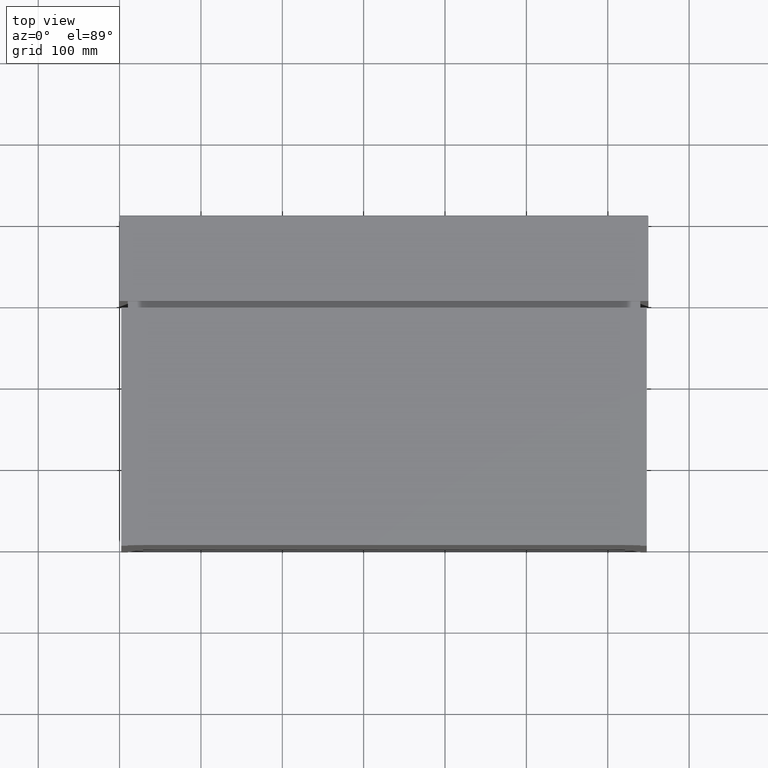
[diagram: clean part render]
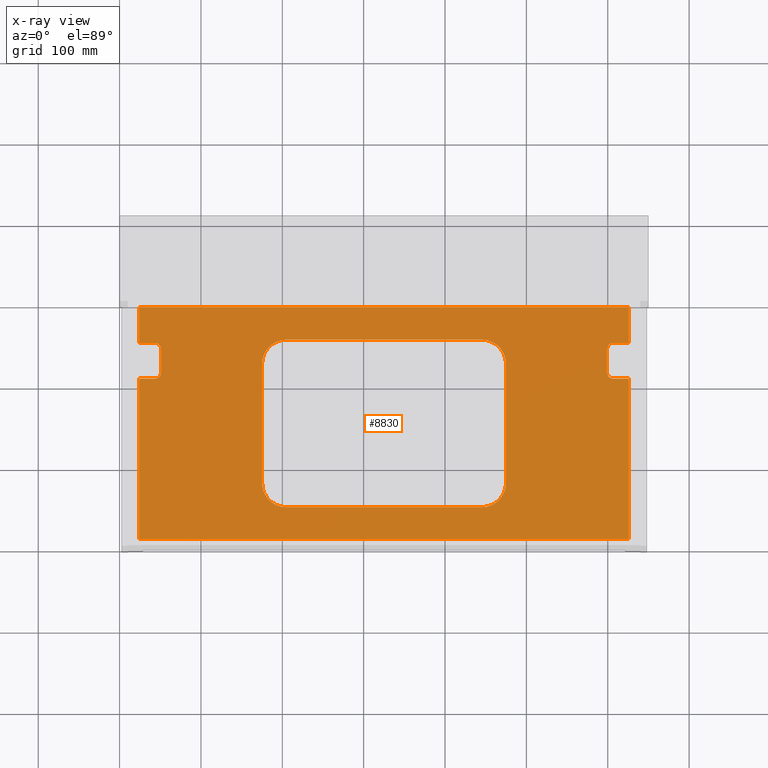
[diagram: x-ray — body ghosted, one internal face saturated and labeled with its STEP entity id]
A machine part, top view, then the same camera in x-ray: the body is ghosted and one INTERNAL B-rep face — a face not visible from any outside direction — is saturated and labeled: STEP entity #8830.
In plain terms, the highlighted planar face has unit normal (0, 0, -1).
Its self-contained STEP definition (entity closure, byte-faithful):
#72 = CARTESIAN_POINT ( 'NONE',  ( 174.9999999999999432, 83.99999999999998579, -440.4999999999998295 ) ) ;
#530 = VERTEX_POINT ( 'NONE', #6392 ) ;
#550 = CARTESIAN_POINT ( 'NONE',  ( 24.00000000000002132, 256.0000000000001705, -440.4999999999998295 ) ) ;
#551 = ORIENTED_EDGE ( 'NONE', *, *, #10274, .T. ) ;
#558 = LINE ( 'NONE', #5007, #9171 ) ;
#607 = LINE ( 'NONE', #5059, #10146 ) ;
#645 = VERTEX_POINT ( 'NONE', #6605 ) ;
#666 = EDGE_CURVE ( 'NONE', #530, #12636, #13265, .T. ) ;
#669 = DIRECTION ( 'NONE',  ( 1.000000000000000000, 0.0000000000000000000, 0.0000000000000000000 ) ) ;
#691 = EDGE_CURVE ( 'NONE', #12238, #8826, #13338, .T. ) ;
#734 = DIRECTION ( 'NONE',  ( 3.965082230804127459E-15, -1.000000000000000000, 0.0000000000000000000 ) ) ;
#783 = AXIS2_PLACEMENT_3D ( 'NONE', #8715, #13130, #3207 ) ;
#875 = FACE_OUTER_BOUND ( 'NONE', #13262, .T. ) ;
#947 = LINE ( 'NONE', #5384, #4089 ) ;
#957 = ORIENTED_EDGE ( 'NONE', *, *, #9384, .F. ) ;
#1093 = CARTESIAN_POINT ( 'NONE',  ( 444.9999999999999432, 260.0000000000001705, -440.4999999999997726 ) ) ;
#1181 = ORIENTED_EDGE ( 'NONE', *, *, #9986, .F. ) ;
#1299 = AXIS2_PLACEMENT_3D ( 'NONE', #6201, #10625, #669 ) ;
#1310 = CARTESIAN_POINT ( 'NONE',  ( 444.9999999999999432, 53.99999999999999289, -440.4999999999997726 ) ) ;
#1320 = AXIS2_PLACEMENT_3D ( 'NONE', #2044, #6476, #10898 ) ;
#1550 = VECTOR ( 'NONE', #4999, 1000.000000000000000 ) ;
#1552 = AXIS2_PLACEMENT_3D ( 'NONE', #4856, #9280, #13691 ) ;
#1567 = CARTESIAN_POINT ( 'NONE',  ( 174.9999999999999147, 230.0000000000001705, -440.4999999999998295 ) ) ;
#1583 = EDGE_CURVE ( 'NONE', #3081, #10391, #6271, .T. ) ;
#1717 = ORIENTED_EDGE ( 'NONE', *, *, #666, .F. ) ;
#1822 = EDGE_CURVE ( 'NONE', #9160, #11877, #8557, .T. ) ;
#1949 = DIRECTION ( 'NONE',  ( -0.0000000000000000000, -0.0000000000000000000, 1.000000000000000000 ) ) ;
#2044 = CARTESIAN_POINT ( 'NONE',  ( 606.9999999999998863, 248.0000000000002274, -440.4999999999998295 ) ) ;
#2078 = DIRECTION ( 'NONE',  ( -0.0000000000000000000, -1.000000000000000000, -0.0000000000000000000 ) ) ;
#2092 = CARTESIAN_POINT ( 'NONE',  ( 204.9999999999999432, 83.99999999999998579, -440.4999999999998295 ) ) ;
#2208 = VERTEX_POINT ( 'NONE', #9273 ) ;
#2354 = EDGE_LOOP ( 'NONE', ( #9731, #9352, #1717, #4177, #4770, #12588, #2931, #1181 ) ) ;
#2403 = CIRCLE ( 'NONE', #8662, 30.00000000000000000 ) ;
#2516 = CARTESIAN_POINT ( 'NONE',  ( 599.0000000000000000, 220.0000000000001990, -440.4999999999998295 ) ) ;
#2550 = DIRECTION ( 'NONE',  ( -1.000000000000000000, 0.0000000000000000000, 0.0000000000000000000 ) ) ;
#2669 = LINE ( 'NONE', #7099, #11523 ) ;
#2671 = ORIENTED_EDGE ( 'NONE', *, *, #7807, .T. ) ;
#2681 = VECTOR ( 'NONE', #7281, 1000.000000000000000 ) ;
#2718 = EDGE_CURVE ( 'NONE', #4519, #5140, #12779, .T. ) ;
#2757 = EDGE_CURVE ( 'NONE', #2208, #9712, #5177, .T. ) ;
#2853 = CARTESIAN_POINT ( 'NONE',  ( 474.9999999999998863, 230.0000000000001705, -440.4999999999998295 ) ) ;
#2931 = ORIENTED_EDGE ( 'NONE', *, *, #5201, .F. ) ;
#2990 = EDGE_CURVE ( 'NONE', #4694, #4079, #2403, .T. ) ;
#3040 = DIRECTION ( 'NONE',  ( -0.0000000000000000000, -1.000000000000000000, -0.0000000000000000000 ) ) ;
#3081 = VERTEX_POINT ( 'NONE', #6470 ) ;
#3207 = DIRECTION ( 'NONE',  ( -1.000000000000000000, 0.0000000000000000000, 0.0000000000000000000 ) ) ;
#3238 = DIRECTION ( 'NONE',  ( -0.0000000000000000000, -1.000000000000000000, -0.0000000000000000000 ) ) ;
#3339 = CARTESIAN_POINT ( 'NONE',  ( 444.9999999999999432, 53.99999999999999289, -440.4999999999997726 ) ) ;
#3416 = CARTESIAN_POINT ( 'NONE',  ( 24.00000000000002132, 212.0000000000001990, -440.4999999999998295 ) ) ;
#3587 = VECTOR ( 'NONE', #3040, 1000.000000000000000 ) ;
#3610 = VECTOR ( 'NONE', #5537, 1000.000000000000000 ) ;
#3612 = CARTESIAN_POINT ( 'NONE',  ( 24.00000000000002132, 902.2125870487927841, -440.4999999999998295 ) ) ;
#3681 = EDGE_CURVE ( 'NONE', #13279, #10080, #12808, .T. ) ;
#3723 = DIRECTION ( 'NONE',  ( 1.000000000000000000, -0.0000000000000000000, 0.0000000000000000000 ) ) ;
#3843 = VECTOR ( 'NONE', #8044, 1000.000000000000000 ) ;
#3926 = DIRECTION ( 'NONE',  ( -1.000000000000000000, 9.251858538542971828E-16, 0.0000000000000000000 ) ) ;
#3947 = EDGE_CURVE ( 'NONE', #4629, #530, #4965, .T. ) ;
#4079 = VERTEX_POINT ( 'NONE', #1567 ) ;
#4089 = VECTOR ( 'NONE', #9810, 1000.000000000000000 ) ;
#4177 = ORIENTED_EDGE ( 'NONE', *, *, #3947, .F. ) ;
#4217 = DIRECTION ( 'NONE',  ( -1.000000000000000000, 0.0000000000000000000, -0.0000000000000000000 ) ) ;
#4464 = ORIENTED_EDGE ( 'NONE', *, *, #9653, .F. ) ;
#4497 = CARTESIAN_POINT ( 'NONE',  ( 42.99999999999998579, 256.0000000000001705, -440.4999999999998295 ) ) ;
#4519 = VERTEX_POINT ( 'NONE', #7635 ) ;
#4553 = CARTESIAN_POINT ( 'NONE',  ( 24.00000000000002132, 212.0000000000001990, -440.4999999999998295 ) ) ;
#4629 = VERTEX_POINT ( 'NONE', #72 ) ;
#4694 = VERTEX_POINT ( 'NONE', #11245 ) ;
#4770 = ORIENTED_EDGE ( 'NONE', *, *, #4864, .F. ) ;
#4856 = CARTESIAN_POINT ( 'NONE',  ( 444.9999999999998295, 83.99999999999998579, -440.4999999999998295 ) ) ;
#4857 = VERTEX_POINT ( 'NONE', #7181 ) ;
#4864 = EDGE_CURVE ( 'NONE', #4079, #4629, #558, .T. ) ;
#4965 = CIRCLE ( 'NONE', #8914, 30.00000000000000000 ) ;
#4999 = DIRECTION ( 'NONE',  ( -1.000000000000000000, -0.0000000000000000000, -0.0000000000000000000 ) ) ;
#5007 = CARTESIAN_POINT ( 'NONE',  ( 174.9999999999999147, 230.0000000000001705, -440.4999999999998295 ) ) ;
#5059 = CARTESIAN_POINT ( 'NONE',  ( 50.99999999999999289, 248.0000000000001705, -440.4999999999998295 ) ) ;
#5077 = CARTESIAN_POINT ( 'NONE',  ( 50.99999999999999289, 248.0000000000001705, -440.4999999999998295 ) ) ;
#5140 = VERTEX_POINT ( 'NONE', #10963 ) ;
#5177 = LINE ( 'NONE', #9604, #13329 ) ;
#5201 = EDGE_CURVE ( 'NONE', #6408, #4694, #11036, .T. ) ;
#5208 = CARTESIAN_POINT ( 'NONE',  ( 24.00000000000002132, 300.0000000000001705, -440.4999999999998295 ) ) ;
#5315 = PLANE ( 'NONE',  #8498 ) ;
#5384 = CARTESIAN_POINT ( 'NONE',  ( 625.9999999999998863, 256.0000000000001705, -440.4999999999998295 ) ) ;
#5497 = CARTESIAN_POINT ( 'NONE',  ( 50.99999999999999289, 220.0000000000001990, -440.4999999999998295 ) ) ;
#5537 = DIRECTION ( 'NONE',  ( -1.000000000000000000, 0.0000000000000000000, 0.0000000000000000000 ) ) ;
#5671 = EDGE_CURVE ( 'NONE', #9712, #8017, #7601, .T. ) ;
#5988 = VECTOR ( 'NONE', #3238, 1000.000000000000000 ) ;
#6198 = CIRCLE ( 'NONE', #8061, 30.00000000000002842 ) ;
#6201 = CARTESIAN_POINT ( 'NONE',  ( 42.99999999999998579, 220.0000000000001990, -440.4999999999998295 ) ) ;
#6271 = LINE ( 'NONE', #10689, #9380 ) ;
#6386 = DIRECTION ( 'NONE',  ( -1.000000000000000000, 0.0000000000000000000, 0.0000000000000000000 ) ) ;
#6392 = CARTESIAN_POINT ( 'NONE',  ( 204.9999999999999432, 54.00000000000004974, -440.4999999999998295 ) ) ;
#6399 = CARTESIAN_POINT ( 'NONE',  ( 42.99999999999998579, 212.0000000000001990, -440.4999999999998295 ) ) ;
#6408 = VERTEX_POINT ( 'NONE', #10715 ) ;
#6431 = VERTEX_POINT ( 'NONE', #5208 ) ;
#6470 = CARTESIAN_POINT ( 'NONE',  ( 598.9999999999998863, 248.0000000000002274, -440.4999999999998295 ) ) ;
#6476 = DIRECTION ( 'NONE',  ( 0.0000000000000000000, 0.0000000000000000000, 1.000000000000000000 ) ) ;
#6523 = DIRECTION ( 'NONE',  ( -0.0000000000000000000, -0.0000000000000000000, 1.000000000000000000 ) ) ;
#6605 = CARTESIAN_POINT ( 'NONE',  ( 24.00000000000002132, 15.00000000000001421, -440.4999999999998295 ) ) ;
#7014 = ORIENTED_EDGE ( 'NONE', *, *, #11347, .F. ) ;
#7099 = CARTESIAN_POINT ( 'NONE',  ( 24.00000000000002132, 15.00000000000001421, -440.4999999999998295 ) ) ;
#7181 = CARTESIAN_POINT ( 'NONE',  ( 606.9999999999998863, 256.0000000000002274, -440.4999999999998295 ) ) ;
#7281 = DIRECTION ( 'NONE',  ( 0.0000000000000000000, 1.000000000000000000, 0.0000000000000000000 ) ) ;
#7563 = CIRCLE ( 'NONE', #1299, 8.000000000000007105 ) ;
#7586 = CIRCLE ( 'NONE', #1320, 8.000000000000007105 ) ;
#7601 = LINE ( 'NONE', #12017, #9805 ) ;
#7635 = CARTESIAN_POINT ( 'NONE',  ( 474.9999999999998863, 83.99999999999998579, -440.4999999999998295 ) ) ;
#7704 = CARTESIAN_POINT ( 'NONE',  ( 625.9999999999998863, 212.0000000000001990, -440.4999999999998295 ) ) ;
#7769 = DIRECTION ( 'NONE',  ( 1.000000000000000000, 0.0000000000000000000, 0.0000000000000000000 ) ) ;
#7807 = EDGE_CURVE ( 'NONE', #12238, #645, #13542, .T. ) ;
#7831 = CIRCLE ( 'NONE', #1552, 30.00000000000002842 ) ;
#7845 = DIRECTION ( 'NONE',  ( 1.000000000000000000, 0.0000000000000000000, 0.0000000000000000000 ) ) ;
#7928 = VERTEX_POINT ( 'NONE', #5497 ) ;
#8017 = VERTEX_POINT ( 'NONE', #11134 ) ;
#8044 = DIRECTION ( 'NONE',  ( -0.0000000000000000000, -1.000000000000000000, -0.0000000000000000000 ) ) ;
#8061 = AXIS2_PLACEMENT_3D ( 'NONE', #11888, #1949, #6386 ) ;
#8075 = CARTESIAN_POINT ( 'NONE',  ( 606.9999999999998863, 220.0000000000001990, -440.4999999999998295 ) ) ;
#8183 = VECTOR ( 'NONE', #7845, 1000.000000000000000 ) ;
#8240 = EDGE_CURVE ( 'NONE', #8826, #7928, #7563, .T. ) ;
#8497 = ORIENTED_EDGE ( 'NONE', *, *, #8240, .F. ) ;
#8498 = AXIS2_PLACEMENT_3D ( 'NONE', #9738, #14159, #4217 ) ;
#8557 = LINE ( 'NONE', #12967, #3587 ) ;
#8584 = ORIENTED_EDGE ( 'NONE', *, *, #1822, .F. ) ;
#8651 = ORIENTED_EDGE ( 'NONE', *, *, #13244, .F. ) ;
#8662 = AXIS2_PLACEMENT_3D ( 'NONE', #9452, #13863, #3926 ) ;
#8715 = CARTESIAN_POINT ( 'NONE',  ( 42.99999999999998579, 248.0000000000001705, -440.4999999999998295 ) ) ;
#8754 = LINE ( 'NONE', #13164, #5988 ) ;
#8826 = VERTEX_POINT ( 'NONE', #6399 ) ;
#8830 = ADVANCED_FACE ( 'NONE', ( #10825, #875 ), #5315, .F. ) ;
#8855 = EDGE_CURVE ( 'NONE', #11877, #4857, #947, .T. ) ;
#8914 = AXIS2_PLACEMENT_3D ( 'NONE', #2092, #6523, #10945 ) ;
#9160 = VERTEX_POINT ( 'NONE', #12033 ) ;
#9171 = VECTOR ( 'NONE', #9439, 1000.000000000000000 ) ;
#9194 = CIRCLE ( 'NONE', #11038, 7.999999999999896083 ) ;
#9245 = LINE ( 'NONE', #13655, #11510 ) ;
#9273 = CARTESIAN_POINT ( 'NONE',  ( 606.9999999999998863, 212.0000000000002558, -440.4999999999998295 ) ) ;
#9280 = DIRECTION ( 'NONE',  ( -0.0000000000000000000, -0.0000000000000000000, 1.000000000000000000 ) ) ;
#9352 = ORIENTED_EDGE ( 'NONE', *, *, #10265, .F. ) ;
#9380 = VECTOR ( 'NONE', #734, 1000.000000000000000 ) ;
#9384 = EDGE_CURVE ( 'NONE', #6431, #9160, #9245, .T. ) ;
#9439 = DIRECTION ( 'NONE',  ( 0.0000000000000000000, -1.000000000000000000, 0.0000000000000000000 ) ) ;
#9452 = CARTESIAN_POINT ( 'NONE',  ( 204.9999999999999432, 230.0000000000001705, -440.4999999999998295 ) ) ;
#9480 = ORIENTED_EDGE ( 'NONE', *, *, #14363, .T. ) ;
#9484 = DIRECTION ( 'NONE',  ( -0.0000000000000000000, 1.000000000000000000, -0.0000000000000000000 ) ) ;
#9604 = CARTESIAN_POINT ( 'NONE',  ( 625.9999999999998863, 212.0000000000001990, -440.4999999999998295 ) ) ;
#9653 = EDGE_CURVE ( 'NONE', #4857, #3081, #7586, .T. ) ;
#9712 = VERTEX_POINT ( 'NONE', #7704 ) ;
#9731 = ORIENTED_EDGE ( 'NONE', *, *, #2718, .F. ) ;
#9738 = CARTESIAN_POINT ( 'NONE',  ( 24.00000000000002132, 902.2125870487927841, -440.4999999999998295 ) ) ;
#9805 = VECTOR ( 'NONE', #2078, 1000.000000000000000 ) ;
#9810 = DIRECTION ( 'NONE',  ( -1.000000000000000000, 2.921639538487251500E-15, 0.0000000000000000000 ) ) ;
#9986 = EDGE_CURVE ( 'NONE', #5140, #6408, #6198, .T. ) ;
#10041 = VECTOR ( 'NONE', #7769, 1000.000000000000000 ) ;
#10080 = VERTEX_POINT ( 'NONE', #4497 ) ;
#10146 = VECTOR ( 'NONE', #9484, 1000.000000000000000 ) ;
#10226 = CARTESIAN_POINT ( 'NONE',  ( 625.9999999999998863, 256.0000000000001705, -440.4999999999998295 ) ) ;
#10265 = EDGE_CURVE ( 'NONE', #12636, #4519, #7831, .T. ) ;
#10274 = EDGE_CURVE ( 'NONE', #645, #8017, #2669, .T. ) ;
#10391 = VERTEX_POINT ( 'NONE', #2516 ) ;
#10508 = LINE ( 'NONE', #550, #1550 ) ;
#10625 = DIRECTION ( 'NONE',  ( 0.0000000000000000000, 0.0000000000000000000, 1.000000000000000000 ) ) ;
#10689 = CARTESIAN_POINT ( 'NONE',  ( 598.9999999999998863, 248.0000000000002274, -440.4999999999998295 ) ) ;
#10715 = CARTESIAN_POINT ( 'NONE',  ( 444.9999999999999432, 260.0000000000001705, -440.4999999999997726 ) ) ;
#10825 = FACE_BOUND ( 'NONE', #2354, .T. ) ;
#10898 = DIRECTION ( 'NONE',  ( 1.000000000000000000, 0.0000000000000000000, 0.0000000000000000000 ) ) ;
#10945 = DIRECTION ( 'NONE',  ( -1.000000000000000000, 0.0000000000000000000, 0.0000000000000000000 ) ) ;
#10963 = CARTESIAN_POINT ( 'NONE',  ( 474.9999999999998863, 230.0000000000001705, -440.4999999999998295 ) ) ;
#10973 = ORIENTED_EDGE ( 'NONE', *, *, #3681, .F. ) ;
#11036 = LINE ( 'NONE', #1093, #3610 ) ;
#11038 = AXIS2_PLACEMENT_3D ( 'NONE', #8075, #12486, #2550 ) ;
#11134 = CARTESIAN_POINT ( 'NONE',  ( 625.9999999999998863, 15.00000000000001421, -440.4999999999998295 ) ) ;
#11245 = CARTESIAN_POINT ( 'NONE',  ( 205.0000000000000000, 260.0000000000001705, -440.4999999999998295 ) ) ;
#11347 = EDGE_CURVE ( 'NONE', #10391, #2208, #9194, .T. ) ;
#11458 = CARTESIAN_POINT ( 'NONE',  ( 24.00000000000002132, 256.0000000000001705, -440.4999999999998295 ) ) ;
#11510 = VECTOR ( 'NONE', #3723, 1000.000000000000000 ) ;
#11518 = DIRECTION ( 'NONE',  ( 1.000000000000000000, 0.0000000000000000000, 0.0000000000000000000 ) ) ;
#11523 = VECTOR ( 'NONE', #11518, 1000.000000000000000 ) ;
#11552 = ORIENTED_EDGE ( 'NONE', *, *, #13477, .F. ) ;
#11698 = ORIENTED_EDGE ( 'NONE', *, *, #1583, .F. ) ;
#11877 = VERTEX_POINT ( 'NONE', #10226 ) ;
#11888 = CARTESIAN_POINT ( 'NONE',  ( 444.9999999999998295, 230.0000000000001705, -440.4999999999998295 ) ) ;
#12017 = CARTESIAN_POINT ( 'NONE',  ( 625.9999999999998863, 902.2125870487927841, -440.4999999999998295 ) ) ;
#12033 = CARTESIAN_POINT ( 'NONE',  ( 625.9999999999998863, 300.0000000000001705, -440.4999999999998295 ) ) ;
#12238 = VERTEX_POINT ( 'NONE', #4553 ) ;
#12486 = DIRECTION ( 'NONE',  ( 0.0000000000000000000, 0.0000000000000000000, 1.000000000000000000 ) ) ;
#12588 = ORIENTED_EDGE ( 'NONE', *, *, #2990, .F. ) ;
#12636 = VERTEX_POINT ( 'NONE', #1310 ) ;
#12745 = VERTEX_POINT ( 'NONE', #11458 ) ;
#12779 = LINE ( 'NONE', #2853, #2681 ) ;
#12808 = CIRCLE ( 'NONE', #783, 8.000000000000007105 ) ;
#12947 = ORIENTED_EDGE ( 'NONE', *, *, #5671, .F. ) ;
#12967 = CARTESIAN_POINT ( 'NONE',  ( 625.9999999999998863, 902.2125870487927841, -440.4999999999998295 ) ) ;
#13130 = DIRECTION ( 'NONE',  ( 0.0000000000000000000, 0.0000000000000000000, 1.000000000000000000 ) ) ;
#13164 = CARTESIAN_POINT ( 'NONE',  ( 24.00000000000002132, 902.2125870487927841, -440.4999999999998295 ) ) ;
#13244 = EDGE_CURVE ( 'NONE', #10080, #12745, #10508, .T. ) ;
#13262 = EDGE_LOOP ( 'NONE', ( #9480, #8651, #10973, #11552, #8497, #14085, #2671, #551, #12947, #13535, #7014, #11698, #4464, #13818, #8584, #957 ) ) ;
#13265 = LINE ( 'NONE', #3339, #10041 ) ;
#13279 = VERTEX_POINT ( 'NONE', #5077 ) ;
#13329 = VECTOR ( 'NONE', #14024, 1000.000000000000000 ) ;
#13338 = LINE ( 'NONE', #3416, #8183 ) ;
#13477 = EDGE_CURVE ( 'NONE', #7928, #13279, #607, .T. ) ;
#13535 = ORIENTED_EDGE ( 'NONE', *, *, #2757, .F. ) ;
#13542 = LINE ( 'NONE', #3612, #3843 ) ;
#13655 = CARTESIAN_POINT ( 'NONE',  ( 24.00000000000002132, 299.9999999999999432, -440.4999999999998295 ) ) ;
#13691 = DIRECTION ( 'NONE',  ( -1.000000000000000000, 9.251858538542961967E-16, 0.0000000000000000000 ) ) ;
#13818 = ORIENTED_EDGE ( 'NONE', *, *, #8855, .F. ) ;
#13863 = DIRECTION ( 'NONE',  ( -0.0000000000000000000, -0.0000000000000000000, 1.000000000000000000 ) ) ;
#14024 = DIRECTION ( 'NONE',  ( 1.000000000000000000, -0.0000000000000000000, -0.0000000000000000000 ) ) ;
#14085 = ORIENTED_EDGE ( 'NONE', *, *, #691, .F. ) ;
#14159 = DIRECTION ( 'NONE',  ( 0.0000000000000000000, 0.0000000000000000000, -1.000000000000000000 ) ) ;
#14363 = EDGE_CURVE ( 'NONE', #6431, #12745, #8754, .T. ) ;